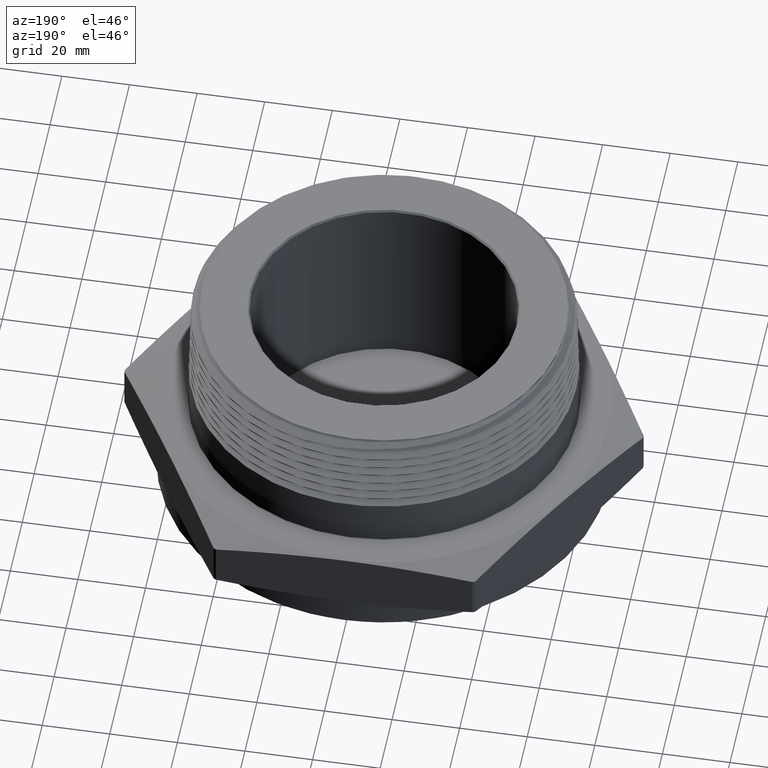
[diagram: clean part render]
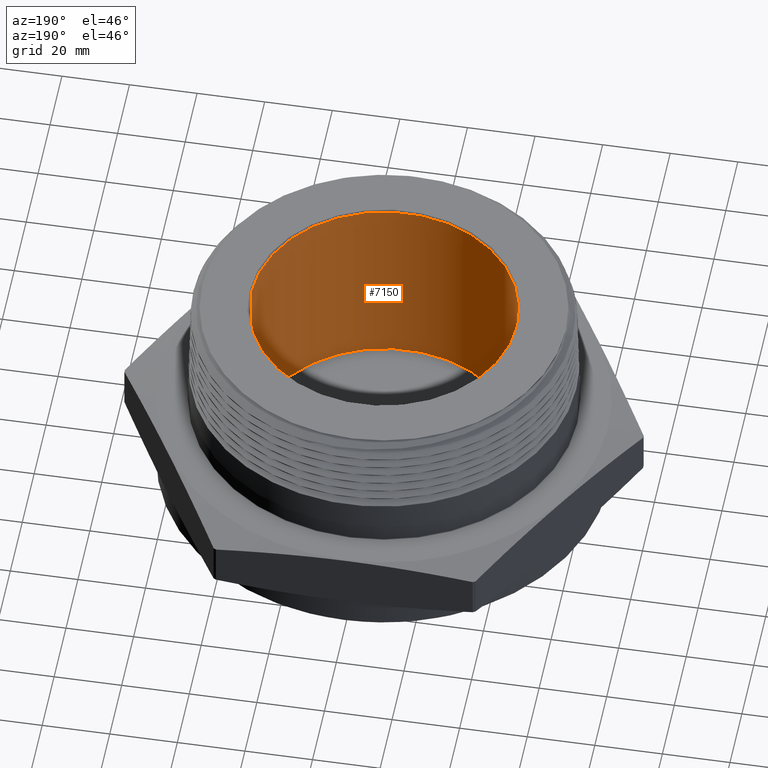
[diagram: same view with one face highlighted and labeled with its STEP entity id]
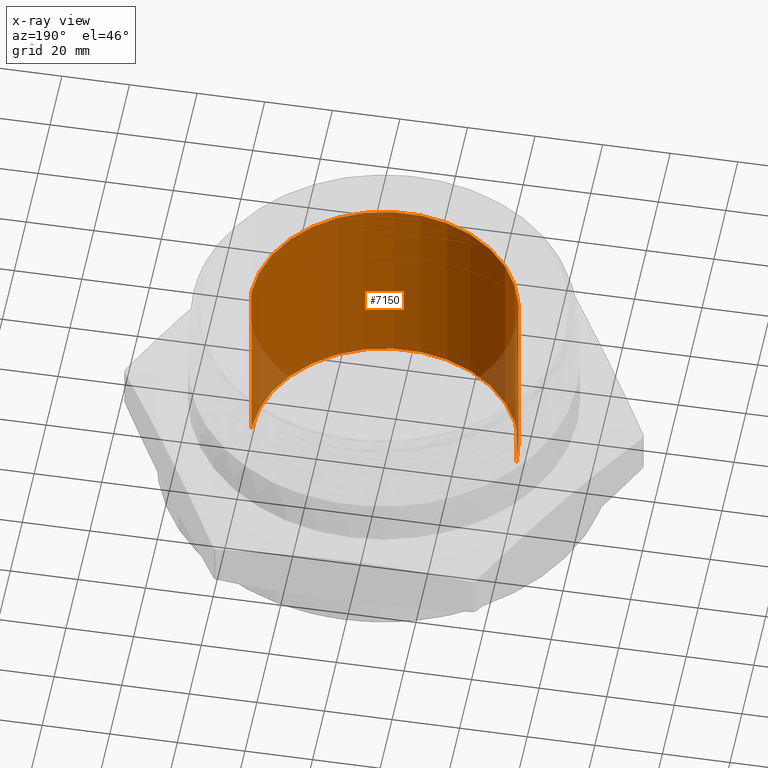
[diagram: x-ray of the same camera — body ghosted, the highlighted face saturated]
A machine part, auxiliary view. The second image highlights one B-rep face of the part: STEP entity #7150.
The next image is the same camera in x-ray: the body ghosted, the highlighted face saturated — about 9% of this face is hidden behind the body in this view.
In plain terms, the highlighted cylindrical surface (partial cylindrical patch) has radius 39.243 mm, axis along (0, -0, -1).
Its self-contained STEP definition (entity closure, byte-faithful):
#687 = VERTEX_POINT ( 'NONE', #7965 ) ;
#3600 = LINE ( 'NONE', #6572, #3608 ) ;
#3603 = LINE ( 'NONE', #6561, #3605 ) ;
#3604 = CIRCLE ( 'NONE', #8054, 1.544999999999999700 ) ;
#3605 = VECTOR ( 'NONE', #6560, 39.37007874015748100 ) ;
#3606 = CIRCLE ( 'NONE', #8056, 1.545000000000000200 ) ;
#3608 = VECTOR ( 'NONE', #6566, 39.37007874015748100 ) ;
#3636 = FACE_OUTER_BOUND ( 'NONE', #5523, .T. ) ;
#3638 = CYLINDRICAL_SURFACE ( 'NONE', #8071, 1.545000000000000200 ) ;
#3765 = VERTEX_POINT ( 'NONE', #5826 ) ;
#3774 = VERTEX_POINT ( 'NONE', #5830 ) ;
#3810 = VERTEX_POINT ( 'NONE', #5852 ) ;
#3960 = EDGE_CURVE ( 'NONE', #3810, #687, #3603, .T. ) ;
#3961 = EDGE_CURVE ( 'NONE', #3765, #687, #3604, .T. ) ;
#3962 = EDGE_CURVE ( 'NONE', #3774, #3765, #3600, .T. ) ;
#3966 = EDGE_CURVE ( 'NONE', #3774, #3810, #3606, .T. ) ;
#5387 = ORIENTED_EDGE ( 'NONE', *, *, #3960, .F. ) ;
#5388 = ORIENTED_EDGE ( 'NONE', *, *, #3961, .T. ) ;
#5389 = ORIENTED_EDGE ( 'NONE', *, *, #3962, .T. ) ;
#5390 = ORIENTED_EDGE ( 'NONE', *, *, #3966, .F. ) ;
#5523 = EDGE_LOOP ( 'NONE', ( #5390, #5389, #5388, #5387 ) ) ;
#5826 = CARTESIAN_POINT ( 'NONE',  ( 1.544999999999999700, 1.892079304682660300E-016, -0.1037795275590551000 ) ) ;
#5830 = CARTESIAN_POINT ( 'NONE',  ( 1.545000000000000200, 1.892079304682660800E-016, 2.150000000000000400 ) ) ;
#5852 = CARTESIAN_POINT ( 'NONE',  ( -1.545000000000000200, 0.0000000000000000000, 2.150000000000000400 ) ) ;
#6560 = DIRECTION ( 'NONE',  ( 2.862758958035005200E-018, -0.0000000000000000000, -1.000000000000000000 ) ) ;
#6561 = CARTESIAN_POINT ( 'NONE',  ( -1.545000000000000200, 0.0000000000000000000, -0.3499999999999999800 ) ) ;
#6566 = DIRECTION ( 'NONE',  ( 2.862758958035005200E-018, -0.0000000000000000000, -1.000000000000000000 ) ) ;
#6572 = CARTESIAN_POINT ( 'NONE',  ( 1.545000000000000200, 1.892079304682660800E-016, -0.3499999999999999800 ) ) ;
#6573 = CARTESIAN_POINT ( 'NONE',  ( 2.969070534310133100E-018, 0.0000000000000000000, -0.1037795275590551000 ) ) ;
#6574 = DIRECTION ( 'NONE',  ( 2.862758958035005200E-018, -0.0000000000000000000, -1.000000000000000000 ) ) ;
#6575 = DIRECTION ( 'NONE',  ( -1.000000000000000000, 0.0000000000000000000, 0.0000000000000000000 ) ) ;
#6583 = CARTESIAN_POINT ( 'NONE',  ( -3.482956997645454400E-018, 0.0000000000000000000, 2.150000000000000400 ) ) ;
#6584 = DIRECTION ( 'NONE',  ( 2.862758958035005200E-018, -0.0000000000000000000, -1.000000000000000000 ) ) ;
#6585 = DIRECTION ( 'NONE',  ( -1.000000000000000000, 0.0000000000000000000, 0.0000000000000000000 ) ) ;
#6649 = DIRECTION ( 'NONE',  ( -1.000000000000000000, 0.0000000000000000000, 0.0000000000000000000 ) ) ;
#6666 = CARTESIAN_POINT ( 'NONE',  ( 3.673940397442059200E-018, 0.0000000000000000000, -0.3499999999999999800 ) ) ;
#6709 = DIRECTION ( 'NONE',  ( 2.862758958035005200E-018, -0.0000000000000000000, -1.000000000000000000 ) ) ;
#7150 = ADVANCED_FACE ( 'NONE', ( #3636 ), #3638, .F. ) ;
#7965 = CARTESIAN_POINT ( 'NONE',  ( -1.544999999999999700, 0.0000000000000000000, -0.1037795275590551000 ) ) ;
#8054 = AXIS2_PLACEMENT_3D ( 'NONE', #6573, #6574, #6575 ) ;
#8056 = AXIS2_PLACEMENT_3D ( 'NONE', #6583, #6584, #6585 ) ;
#8071 = AXIS2_PLACEMENT_3D ( 'NONE', #6666, #6709, #6649 ) ;